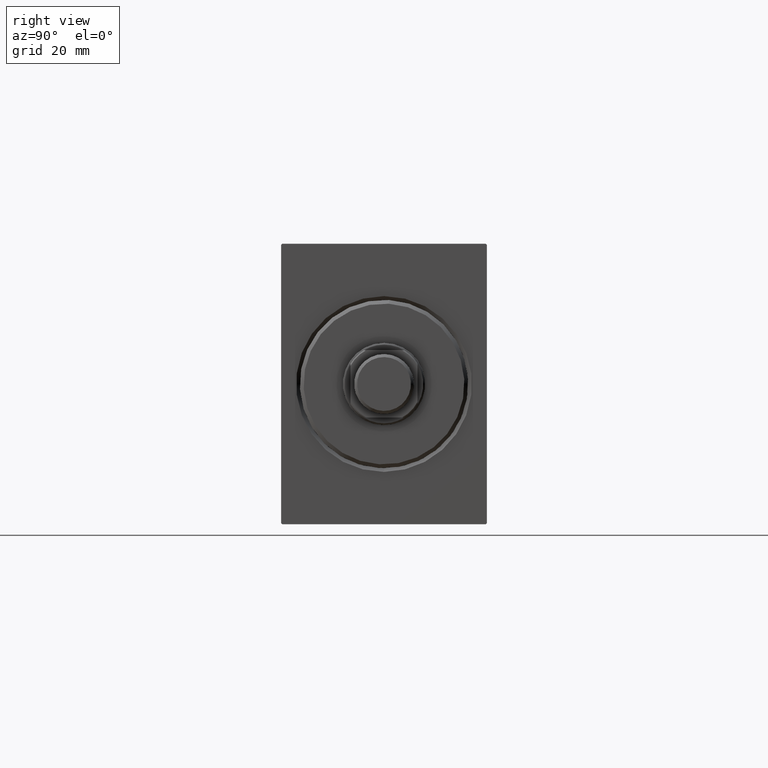
[diagram: clean part render]
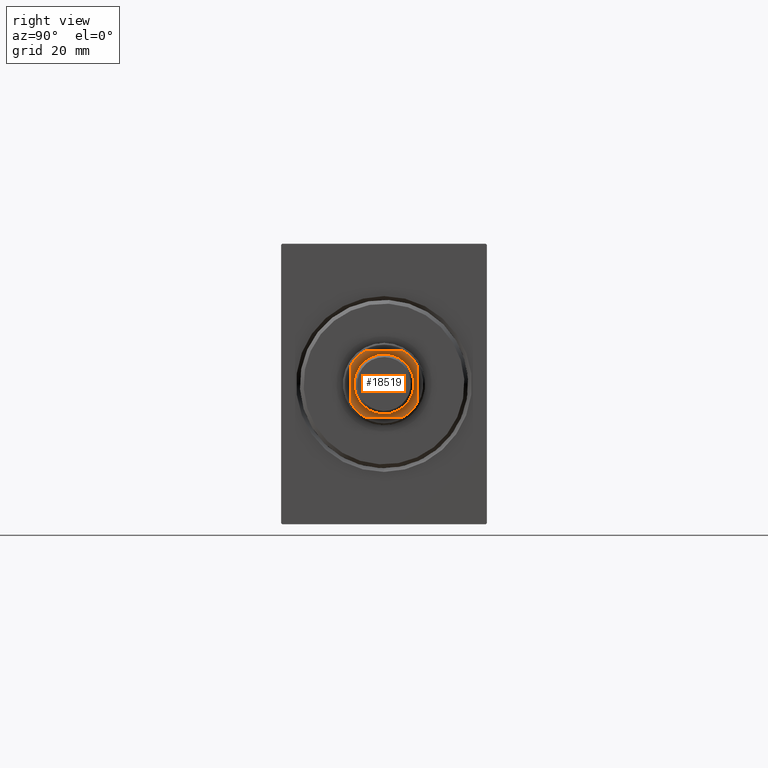
[diagram: same view with one face highlighted and labeled with its STEP entity id]
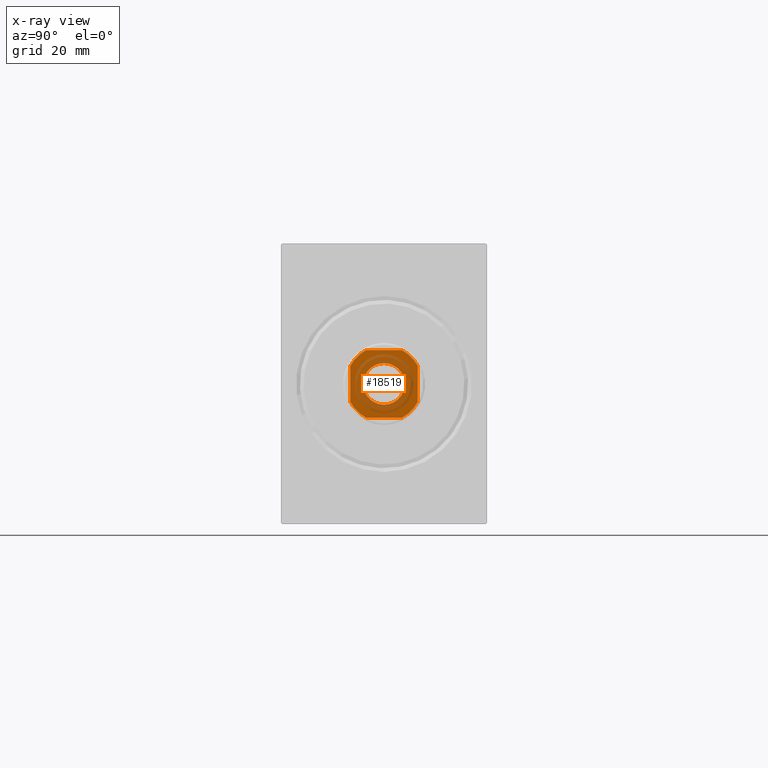
[diagram: x-ray of the same camera — body ghosted, the highlighted face saturated]
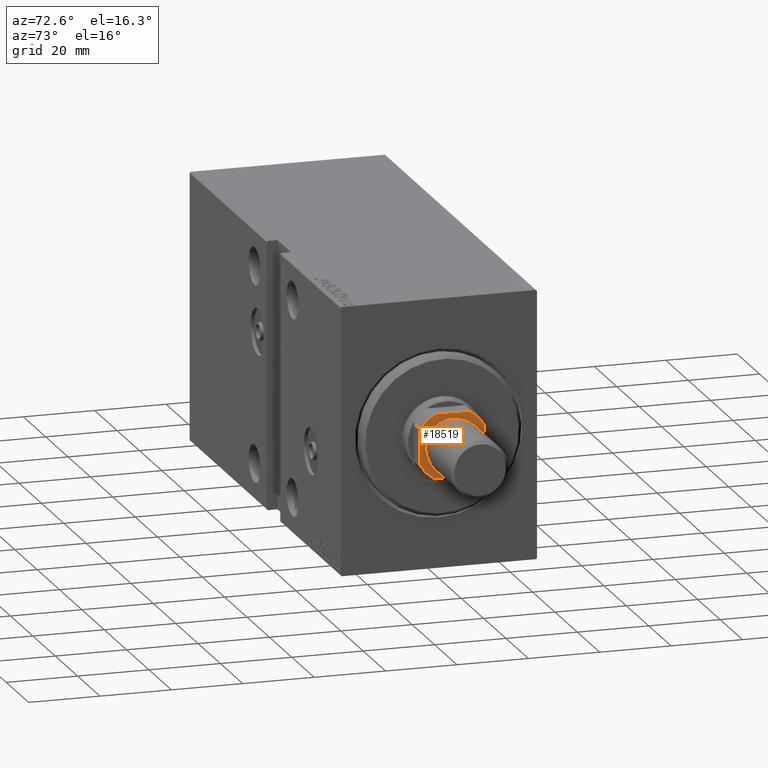
[diagram: same view with one face highlighted and labeled with its STEP entity id]
A machine part, right view. The second image highlights one B-rep face of the part: STEP entity #18519.
The next image is the same camera in x-ray: the body ghosted, the highlighted face saturated — about 52% of this face is hidden behind the body in this view.
A second angle (auxiliary view) of the same face is appended — the face is thin or edge-on in the first view.
In plain terms, the highlighted planar face has unit normal (1, 0, -0).
Its self-contained STEP definition (entity closure, byte-faithful):
#35 = DIRECTION ( 'NONE',  ( -0.000000000000000000, 0.000000000000000000, 1.000000000000000000 ) ) ;
#244 = VERTEX_POINT ( 'NONE', #19966 ) ;
#382 = LINE ( 'NONE', #6434, #29984 ) ;
#756 = VECTOR ( 'NONE', #24085, 1000.000000000000000 ) ;
#766 = AXIS2_PLACEMENT_3D ( 'NONE', #11753, #12191, #5034 ) ;
#848 = DIRECTION ( 'NONE',  ( -0.000000000000000000, 0.000000000000000000, 1.000000000000000000 ) ) ;
#1086 = CARTESIAN_POINT ( 'NONE',  ( 0.000000000000000000, 0.000000000000000000, 137.0000000000000000 ) ) ;
#2348 = CIRCLE ( 'NONE', #29474, 5.550000000000027356 ) ;
#2377 = CARTESIAN_POINT ( 'NONE',  ( -4.799999999999961631, 8.999999999999998224, 137.0000000000000000 ) ) ;
#4241 = EDGE_LOOP ( 'NONE', ( #13769, #42113 ) ) ;
#4896 = ORIENTED_EDGE ( 'NONE', *, *, #9352, .T. ) ;
#5034 = DIRECTION ( 'NONE',  ( 1.000000000000000000, 0.000000000000000000, 0.000000000000000000 ) ) ;
#5753 = EDGE_CURVE ( 'NONE', #10959, #12859, #42177, .T. ) ;
#6245 = CARTESIAN_POINT ( 'NONE',  ( 0.000000000000000000, 0.000000000000000000, 137.0000000000000000 ) ) ;
#6434 = CARTESIAN_POINT ( 'NONE',  ( -9.000000000000000000, 8.999999999999998224, 137.0000000000000000 ) ) ;
#7493 = CARTESIAN_POINT ( 'NONE',  ( 9.000000000000003553, -4.799999999999993605, 137.0000000000000000 ) ) ;
#7633 = DIRECTION ( 'NONE',  ( 1.000000000000000000, 0.000000000000000000, 0.000000000000000000 ) ) ;
#7638 = DIRECTION ( 'NONE',  ( 1.000000000000000000, 0.000000000000000000, 0.000000000000000000 ) ) ;
#8025 = DIRECTION ( 'NONE',  ( 1.000000000000000000, 0.000000000000000000, 0.000000000000000000 ) ) ;
#9352 = EDGE_CURVE ( 'NONE', #20674, #33528, #25839, .T. ) ;
#9638 = CARTESIAN_POINT ( 'NONE',  ( -9.000000000000000000, 4.799999999999959854, 137.0000000000000000 ) ) ;
#10924 = VECTOR ( 'NONE', #25860, 1000.000000000000000 ) ;
#10931 = CARTESIAN_POINT ( 'NONE',  ( 0.000000000000000000, 0.000000000000000000, 137.0000000000000000 ) ) ;
#10959 = VERTEX_POINT ( 'NONE', #33154 ) ;
#11446 = CIRCLE ( 'NONE', #36420, 10.19999999999997975 ) ;
#11753 = CARTESIAN_POINT ( 'NONE',  ( 0.000000000000000000, 0.000000000000000000, 137.0000000000000000 ) ) ;
#11854 = FACE_OUTER_BOUND ( 'NONE', #40624, .T. ) ;
#12191 = DIRECTION ( 'NONE',  ( 0.000000000000000000, -0.000000000000000000, -1.000000000000000000 ) ) ;
#12859 = VERTEX_POINT ( 'NONE', #42095 ) ;
#12945 = DIRECTION ( 'NONE',  ( 0.000000000000000000, -0.000000000000000000, -1.000000000000000000 ) ) ;
#13724 = VECTOR ( 'NONE', #22187, 1000.000000000000000 ) ;
#13769 = ORIENTED_EDGE ( 'NONE', *, *, #5753, .T. ) ;
#14727 = DIRECTION ( 'NONE',  ( -0.000000000000000000, 0.000000000000000000, 1.000000000000000000 ) ) ;
#14985 = FACE_BOUND ( 'NONE', #4241, .T. ) ;
#15174 = VERTEX_POINT ( 'NONE', #2377 ) ;
#16051 = EDGE_CURVE ( 'NONE', #12859, #10959, #2348, .T. ) ;
#16775 = EDGE_CURVE ( 'NONE', #23009, #244, #29869, .T. ) ;
#16874 = ORIENTED_EDGE ( 'NONE', *, *, #16775, .T. ) ;
#17039 = AXIS2_PLACEMENT_3D ( 'NONE', #37523, #848, #41537 ) ;
#17258 = CARTESIAN_POINT ( 'NONE',  ( 0.000000000000000000, 0.000000000000000000, 137.0000000000000000 ) ) ;
#18519 = ADVANCED_FACE ( 'NONE', ( #14985, #11854 ), #25480, .T. ) ;
#18608 = LINE ( 'NONE', #24870, #13724 ) ;
#19485 = VERTEX_POINT ( 'NONE', #9638 ) ;
#19609 = CARTESIAN_POINT ( 'NONE',  ( 9.000000000000000000, 4.799999999999916334, 137.0000000000000000 ) ) ;
#19966 = CARTESIAN_POINT ( 'NONE',  ( 4.799999999999995381, -9.000000000000001776, 137.0000000000000000 ) ) ;
#20587 = ORIENTED_EDGE ( 'NONE', *, *, #38344, .T. ) ;
#20674 = VERTEX_POINT ( 'NONE', #19609 ) ;
#20854 = CIRCLE ( 'NONE', #32236, 10.19999999999995843 ) ;
#21710 = CARTESIAN_POINT ( 'NONE',  ( 0.000000000000000000, 0.000000000000000000, 137.0000000000000000 ) ) ;
#22187 = DIRECTION ( 'NONE',  ( -1.927470528863119049E-16, 1.000000000000000000, -0.000000000000000000 ) ) ;
#22241 = DIRECTION ( 'NONE',  ( 1.000000000000000000, 0.000000000000000000, 0.000000000000000000 ) ) ;
#22277 = AXIS2_PLACEMENT_3D ( 'NONE', #1086, #14727, #8025 ) ;
#22458 = DIRECTION ( 'NONE',  ( -0.000000000000000000, 0.000000000000000000, 1.000000000000000000 ) ) ;
#22743 = CIRCLE ( 'NONE', #17039, 10.19999999999999929 ) ;
#23009 = VERTEX_POINT ( 'NONE', #32727 ) ;
#24047 = ORIENTED_EDGE ( 'NONE', *, *, #29417, .T. ) ;
#24085 = DIRECTION ( 'NONE',  ( 1.927470528863119049E-16, -1.000000000000000000, 0.000000000000000000 ) ) ;
#24151 = ORIENTED_EDGE ( 'NONE', *, *, #42087, .T. ) ;
#24303 = DIRECTION ( 'NONE',  ( -1.000000000000000000, -0.000000000000000000, -0.000000000000000000 ) ) ;
#24375 = VERTEX_POINT ( 'NONE', #36261 ) ;
#24870 = CARTESIAN_POINT ( 'NONE',  ( 9.000000000000000000, 8.999999999999998224, 137.0000000000000000 ) ) ;
#25480 = PLANE ( 'NONE',  #33108 ) ;
#25839 = CIRCLE ( 'NONE', #22277, 10.19999999999996021 ) ;
#25860 = DIRECTION ( 'NONE',  ( 1.000000000000000000, 0.000000000000000000, 0.000000000000000000 ) ) ;
#26574 = DIRECTION ( 'NONE',  ( 1.000000000000000000, 0.000000000000000000, 0.000000000000000000 ) ) ;
#26859 = VERTEX_POINT ( 'NONE', #7493 ) ;
#27168 = ORIENTED_EDGE ( 'NONE', *, *, #37290, .T. ) ;
#29405 = ORIENTED_EDGE ( 'NONE', *, *, #36398, .T. ) ;
#29417 = EDGE_CURVE ( 'NONE', #244, #26859, #22743, .T. ) ;
#29474 = AXIS2_PLACEMENT_3D ( 'NONE', #6245, #12945, #26574 ) ;
#29869 = LINE ( 'NONE', #40159, #10924 ) ;
#29984 = VECTOR ( 'NONE', #24303, 1000.000000000000000 ) ;
#32236 = AXIS2_PLACEMENT_3D ( 'NONE', #10931, #22458, #22241 ) ;
#32727 = CARTESIAN_POINT ( 'NONE',  ( -4.799999999999909228, -9.000000000000001776, 137.0000000000000000 ) ) ;
#33108 = AXIS2_PLACEMENT_3D ( 'NONE', #21710, #38245, #7633 ) ;
#33154 = CARTESIAN_POINT ( 'NONE',  ( 5.550000000000027356, 0.000000000000000000, 137.0000000000000000 ) ) ;
#33528 = VERTEX_POINT ( 'NONE', #42668 ) ;
#33915 = CARTESIAN_POINT ( 'NONE',  ( -9.000000000000000000, 8.999999999999998224, 137.0000000000000000 ) ) ;
#36261 = CARTESIAN_POINT ( 'NONE',  ( -8.999999999999996447, -4.799999999999918110, 137.0000000000000000 ) ) ;
#36398 = EDGE_CURVE ( 'NONE', #33528, #15174, #382, .T. ) ;
#36420 = AXIS2_PLACEMENT_3D ( 'NONE', #17258, #35, #7638 ) ;
#37270 = LINE ( 'NONE', #33915, #756 ) ;
#37290 = EDGE_CURVE ( 'NONE', #19485, #24375, #37270, .T. ) ;
#37523 = CARTESIAN_POINT ( 'NONE',  ( 0.000000000000000000, 0.000000000000000000, 137.0000000000000000 ) ) ;
#38245 = DIRECTION ( 'NONE',  ( -0.000000000000000000, 0.000000000000000000, 1.000000000000000000 ) ) ;
#38344 = EDGE_CURVE ( 'NONE', #15174, #19485, #11446, .T. ) ;
#39410 = ORIENTED_EDGE ( 'NONE', *, *, #42291, .T. ) ;
#40159 = CARTESIAN_POINT ( 'NONE',  ( -8.999999999999996447, -9.000000000000001776, 137.0000000000000000 ) ) ;
#40624 = EDGE_LOOP ( 'NONE', ( #39410, #4896, #29405, #20587, #27168, #24151, #16874, #24047 ) ) ;
#41537 = DIRECTION ( 'NONE',  ( 1.000000000000000000, 0.000000000000000000, 0.000000000000000000 ) ) ;
#42087 = EDGE_CURVE ( 'NONE', #24375, #23009, #20854, .T. ) ;
#42095 = CARTESIAN_POINT ( 'NONE',  ( -5.550000000000027356, 6.796789735267842335E-16, 137.0000000000000000 ) ) ;
#42113 = ORIENTED_EDGE ( 'NONE', *, *, #16051, .T. ) ;
#42177 = CIRCLE ( 'NONE', #766, 5.550000000000027356 ) ;
#42291 = EDGE_CURVE ( 'NONE', #26859, #20674, #18608, .T. ) ;
#42668 = CARTESIAN_POINT ( 'NONE',  ( 4.799999999999924327, 8.999999999999998224, 137.0000000000000000 ) ) ;